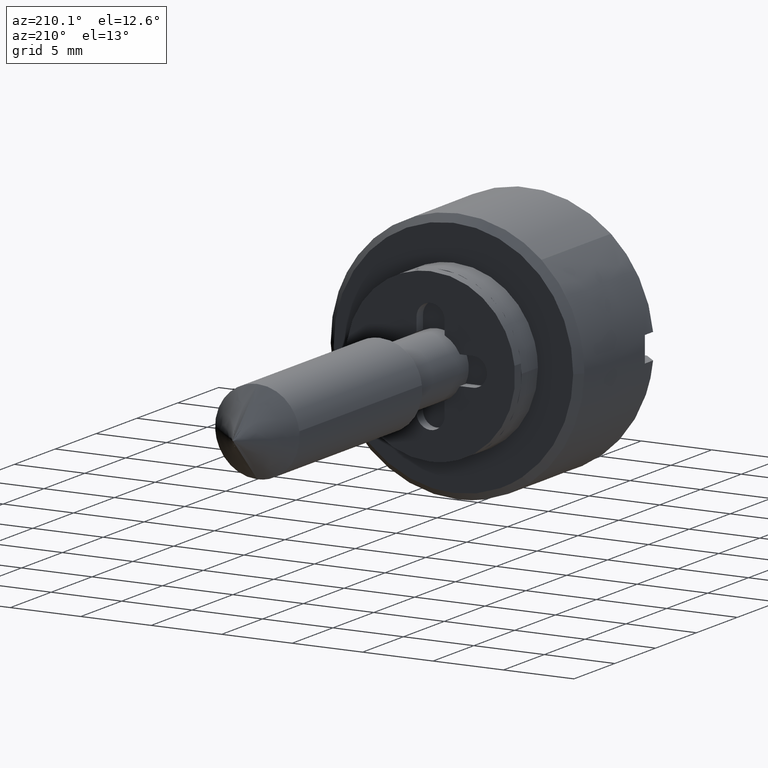
[diagram: clean part render]
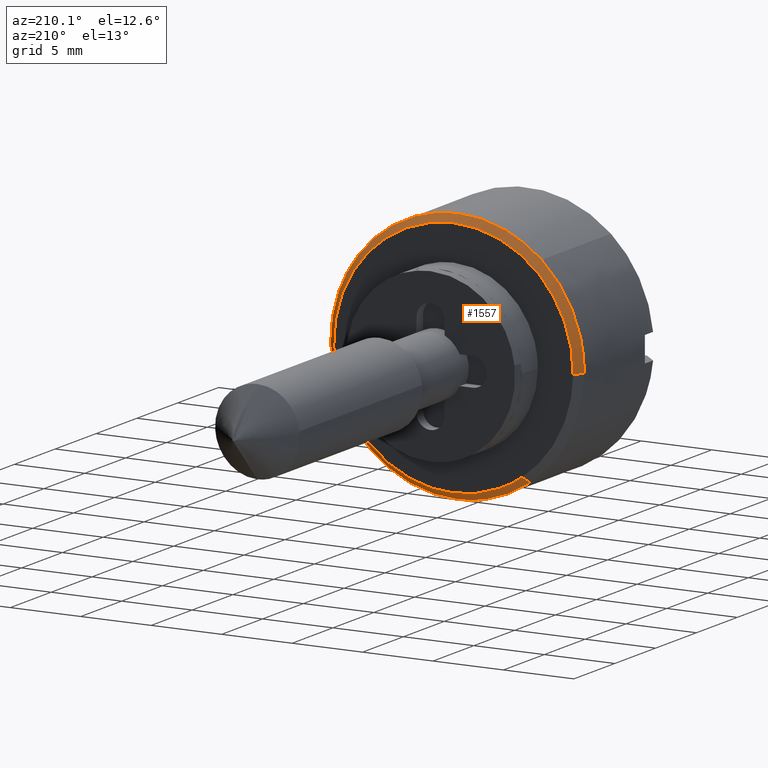
[diagram: same view with one face highlighted and labeled with its STEP entity id]
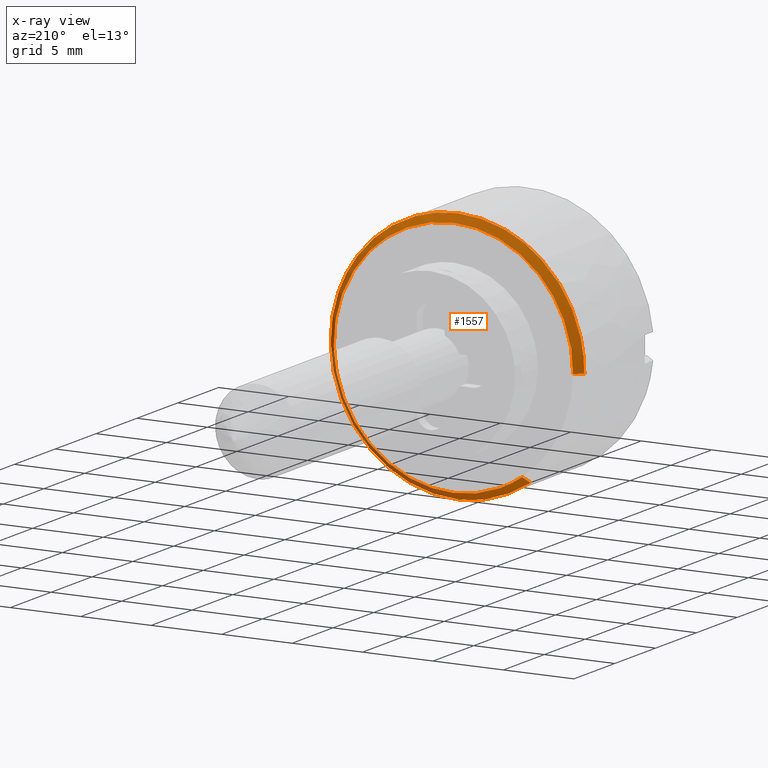
[diagram: x-ray of the same camera — body ghosted, the highlighted face saturated]
A machine part, auxiliary view. The second image highlights one B-rep face of the part: STEP entity #1557.
The next image is the same camera in x-ray: the body ghosted, the highlighted face saturated — about 5% of this face is hidden behind the body in this view.
In plain terms, the highlighted face is a freeform B-spline surface patch.
Its self-contained STEP definition (entity closure, byte-faithful):
#1387=CARTESIAN_POINT('',(-1.987500000000102,4.871694058989055,-6.950126131633188));
#1388=CARTESIAN_POINT('',(-1.987500000000102,2.645031824215975,-8.510906033331208));
#1389=CARTESIAN_POINT('',(-1.987500000000101,-0.074066470042448,-8.487176822007138));
#1390=CARTESIAN_POINT('',(-1.987500000000102,-8.561243292049586,-8.413110351964690));
#1391=CARTESIAN_POINT('',(-1.987500000000101,-8.487176822007138,0.074066470042448));
#1392=CARTESIAN_POINT('',(-1.987500000000102,-8.413110351964690,8.561243292049586));
#1393=CARTESIAN_POINT('',(-1.987500000000101,0.074066470042448,8.487176822007138));
#1394=CARTESIAN_POINT('',(-1.987500000000102,8.561243292049586,8.413110351964690));
#1395=CARTESIAN_POINT('',(-1.987500000000101,8.487176822007138,-0.074066470042448));
#1396=CARTESIAN_POINT('',(-2.512812500000060,5.173215329723990,-7.380286736466609));
#1397=CARTESIAN_POINT('',(-2.512812500000059,2.808739427180158,-9.037667190990643));
#1398=CARTESIAN_POINT('',(-2.512812500000059,-0.078650628221438,-9.012469319716800));
#1399=CARTESIAN_POINT('',(-2.512812500000060,-9.091119947938237,-8.933818691495363));
#1400=CARTESIAN_POINT('',(-2.512812500000059,-9.012469319716800,0.078650628221438));
#1401=CARTESIAN_POINT('',(-2.512812500000060,-8.933818691495363,9.091119947938237));
#1402=CARTESIAN_POINT('',(-2.512812500000059,0.078650628221438,9.012469319716800));
#1403=CARTESIAN_POINT('',(-2.512812500000060,9.091119947938237,8.933818691495363));
#1404=CARTESIAN_POINT('',(-2.512812500000059,9.012469319716800,-0.078650628221438));
#1412=(BOUNDED_SURFACE()B_SPLINE_SURFACE(2,1,((#1387,#1396),(#1388,#1397),(#1389,#1398),(#1390,#1399),(#1391,#1400),(#1392,#1401),(#1393,#1402),(#1394,#1403),(#1395,#1404)),.UNSPECIFIED.,.F.,.F.,.U.)B_SPLINE_SURFACE_WITH_KNOTS((3,2,2,2,3),(2,2),(0.0,5.973166676201216,20.906083366704259,35.839000057207294,50.771916747710343),(0.0,1.0),.UNSPECIFIED.)GEOMETRIC_REPRESENTATION_ITEM()RATIONAL_B_SPLINE_SURFACE(((0.859411254969543,0.859411254969543),(0.882842712474619,0.882842712474619),(1.0,1.0),(0.707106781186548,0.707106781186548),(1.0,1.0),(0.707106781186548,0.707106781186548),(1.0,1.0),(0.707106781186548,0.707106781186548),(1.0,1.0)))REPRESENTATION_ITEM('')SURFACE());
#1413=CARTESIAN_POINT('',(-2.500000000000686,5.165861152401353,-7.369795014389601));
#1414=VERTEX_POINT('',#1413);
#1415=CARTESIAN_POINT('',(-2.500000000000060,0.0,-9.0));
#1416=VERTEX_POINT('',#1415);
#1417=CARTESIAN_POINT('',(-2.500000000000686,5.165861152401353,-7.369795014389601));
#1418=CARTESIAN_POINT('',(-2.500000000000059,2.840154707549706,-9.000000000000002));
#1419=CARTESIAN_POINT('',(-2.500000000000060,0.0,-9.0));
#1427=(BOUNDED_CURVE()B_SPLINE_CURVE(2,(#1417,#1418,#1419),.UNSPECIFIED.,.F.,.U.)B_SPLINE_CURVE_WITH_KNOTS((3,3),(0.901326273796632,1.0),.UNSPECIFIED.)CURVE()GEOMETRIC_REPRESENTATION_ITEM()RATIONAL_B_SPLINE_CURVE((0.860049271925627,0.884396538879913,1.0))REPRESENTATION_ITEM(''));
#1428=EDGE_CURVE('',#1414,#1416,#1427,.T.);
#1429=ORIENTED_EDGE('',*,*,#1428,.F.);
#1430=CARTESIAN_POINT('',(-2.000000000000709,4.878868866157049,-6.960361958034484));
#1431=VERTEX_POINT('',#1430);
#1432=CARTESIAN_POINT('',(-2.000000000000709,4.878868866157049,-6.960361958034484));
#1433=CARTESIAN_POINT('',(-2.500000000000686,5.165861152401353,-7.369795014389601));
#1434=QUASI_UNIFORM_CURVE('',1,(#1432,#1433),.UNSPECIFIED.,.F.,.U.);
#1435=EDGE_CURVE('',#1431,#1414,#1434,.T.);
#1436=ORIENTED_EDGE('',*,*,#1435,.F.);
#1437=CARTESIAN_POINT('',(-2.000000000000100,0.0,-8.500000000000000));
#1438=VERTEX_POINT('',#1437);
#1439=CARTESIAN_POINT('',(-2.000000000000100,0.0,-8.500000000000000));
#1440=CARTESIAN_POINT('',(-2.000000000000101,2.682368334908339,-8.500000000000002));
#1441=CARTESIAN_POINT('',(-2.000000000000709,4.878868866157049,-6.960361958034484));
#1449=(BOUNDED_CURVE()B_SPLINE_CURVE(2,(#1439,#1440,#1441),.UNSPECIFIED.,.F.,.U.)B_SPLINE_CURVE_WITH_KNOTS((3,3),(0.0,0.098673726203377),.UNSPECIFIED.)CURVE()GEOMETRIC_REPRESENTATION_ITEM()RATIONAL_B_SPLINE_CURVE((1.0,0.884396538879903,0.860049271925623))REPRESENTATION_ITEM(''));
#1450=EDGE_CURVE('',#1438,#1431,#1449,.T.);
#1451=ORIENTED_EDGE('',*,*,#1450,.F.);
#1452=CARTESIAN_POINT('',(-2.000000000000100,0.0,8.500000000000000));
#1453=VERTEX_POINT('',#1452);
#1454=CARTESIAN_POINT('',(-2.000000000000100,0.0,8.500000000000000));
#1455=CARTESIAN_POINT('',(-2.000000000000100,-8.500000000000002,8.500000000000002));
#1456=CARTESIAN_POINT('',(-2.000000000000100,-8.500000000000000,0.0));
#1457=CARTESIAN_POINT('',(-2.000000000000100,-8.500000000000002,-8.500000000000002));
#1458=CARTESIAN_POINT('',(-2.000000000000100,0.0,-8.500000000000000));
#1466=(BOUNDED_CURVE()B_SPLINE_CURVE(2,(#1454,#1455,#1456,#1457,#1458),.UNSPECIFIED.,.F.,.U.)B_SPLINE_CURVE_WITH_KNOTS((3,2,3),(0.500000000000000,0.750000000000000,1.0),.UNSPECIFIED.)CURVE()GEOMETRIC_REPRESENTATION_ITEM()RATIONAL_B_SPLINE_CURVE((1.0,0.707106781186548,1.0,0.707106781186548,1.0))REPRESENTATION_ITEM(''));
#1467=EDGE_CURVE('',#1453,#1438,#1466,.T.);
#1468=ORIENTED_EDGE('',*,*,#1467,.F.);
#1469=CARTESIAN_POINT('',(-2.000000000003222,8.499676346048370,-0.074175551759162));
#1470=VERTEX_POINT('',#1469);
#1471=CARTESIAN_POINT('',(-2.000000000003223,8.499676346048370,-0.074175551759162));
#1472=CARTESIAN_POINT('',(-2.000000000000100,8.500000000000000,-0.037088481998920));
#1473=CARTESIAN_POINT('',(-2.000000000000100,8.500000000000000,0.0));
#1474=CARTESIAN_POINT('',(-2.000000000000100,8.500000000000002,8.500000000000002));
#1475=CARTESIAN_POINT('',(-2.000000000000100,0.0,8.500000000000000));
#1483=(BOUNDED_CURVE()B_SPLINE_CURVE(2,(#1471,#1472,#1473,#1474,#1475),.UNSPECIFIED.,.F.,.U.)B_SPLINE_CURVE_WITH_KNOTS((3,2,3),(0.248460105664061,0.250000000000000,0.500000000000000),.UNSPECIFIED.)CURVE()GEOMETRIC_REPRESENTATION_ITEM()RATIONAL_B_SPLINE_CURVE((0.996414028098204,0.998195901565257,1.0,0.707106781186548,1.0))REPRESENTATION_ITEM(''));
#1484=EDGE_CURVE('',#1470,#1453,#1483,.T.);
#1485=ORIENTED_EDGE('',*,*,#1484,.F.);
#1486=CARTESIAN_POINT('',(-2.500000000001362,8.999657307578758,-0.078538819494966));
#1487=VERTEX_POINT('',#1486);
#1488=CARTESIAN_POINT('',(-2.000000000003222,8.499676346048370,-0.074175551759162));
#1489=CARTESIAN_POINT('',(-2.500000000001362,8.999657307578758,-0.078538819494966));
#1490=QUASI_UNIFORM_CURVE('',1,(#1488,#1489),.UNSPECIFIED.,.F.,.U.);
#1491=EDGE_CURVE('',#1470,#1487,#1490,.T.);
#1492=ORIENTED_EDGE('',*,*,#1491,.T.);
#1493=CARTESIAN_POINT('',(-2.500000000000060,5.963579655238609,6.740602176039100));
#1494=VERTEX_POINT('',#1493);
#1495=CARTESIAN_POINT('',(-2.500000000000061,5.963579655238609,6.740602176039100));
#1496=CARTESIAN_POINT('',(-2.500000000000060,9.000000000000002,4.054205008566499));
#1497=CARTESIAN_POINT('',(-2.500000000000060,9.0,0.0));
#1498=CARTESIAN_POINT('',(-2.500000000000059,9.0,-0.039270157395879));
#1499=CARTESIAN_POINT('',(-2.500000000001361,8.999657307578758,-0.078538819494966));
#1507=(BOUNDED_CURVE()B_SPLINE_CURVE(2,(#1495,#1496,#1497,#1498,#1499),.UNSPECIFIED.,.F.,.U.)B_SPLINE_CURVE_WITH_KNOTS((3,2,3),(0.615779870612036,0.750000000000000,0.751539894335362),.UNSPECIFIED.)CURVE()GEOMETRIC_REPRESENTATION_ITEM()RATIONAL_B_SPLINE_CURVE((0.854350161240478,0.842751337096005,1.0,0.998195901565934,0.996414028099539))REPRESENTATION_ITEM(''));
#1508=EDGE_CURVE('',#1494,#1487,#1507,.T.);
#1509=ORIENTED_EDGE('',*,*,#1508,.F.);
#1510=CARTESIAN_POINT('',(-2.500000000000060,0.0,9.0));
#1511=VERTEX_POINT('',#1510);
#1512=CARTESIAN_POINT('',(-2.500000000000060,0.0,9.0));
#1513=CARTESIAN_POINT('',(-2.500000000000060,3.409794383778369,9.0));
#1514=CARTESIAN_POINT('',(-2.500000000000061,5.963579655238609,6.740602176039100));
#1522=(BOUNDED_CURVE()B_SPLINE_CURVE(2,(#1512,#1513,#1514),.UNSPECIFIED.,.F.,.U.)B_SPLINE_CURVE_WITH_KNOTS((3,3),(0.500000000000000,0.615779870612036),.UNSPECIFIED.)CURVE()GEOMETRIC_REPRESENTATION_ITEM()RATIONAL_B_SPLINE_CURVE((1.0,0.864355444090543,0.854350161240478))REPRESENTATION_ITEM(''));
#1523=EDGE_CURVE('',#1511,#1494,#1522,.T.);
#1524=ORIENTED_EDGE('',*,*,#1523,.F.);
#1525=CARTESIAN_POINT('',(-2.500000000000060,-7.070639981337940,5.568307665198088));
#1526=VERTEX_POINT('',#1525);
#1527=CARTESIAN_POINT('',(-2.500000000000060,-7.070639981337941,5.568307665198087));
#1528=CARTESIAN_POINT('',(-2.500000000000060,-4.368095546475855,9.0));
#1529=CARTESIAN_POINT('',(-2.500000000000060,0.0,9.0));
#1537=(BOUNDED_CURVE()B_SPLINE_CURVE(2,(#1527,#1528,#1529),.UNSPECIFIED.,.F.,.U.)B_SPLINE_CURVE_WITH_KNOTS((3,3),(0.357127519602431,0.500000000000000),.UNSPECIFIED.)CURVE()GEOMETRIC_REPRESENTATION_ITEM()RATIONAL_B_SPLINE_CURVE((0.856547233125744,0.832614477345976,1.0))REPRESENTATION_ITEM(''));
#1538=EDGE_CURVE('',#1526,#1511,#1537,.T.);
#1539=ORIENTED_EDGE('',*,*,#1538,.F.);
#1540=CARTESIAN_POINT('',(-2.500000000000060,0.0,-9.0));
#1541=CARTESIAN_POINT('',(-2.500000000000060,-9.0,-9.0));
#1542=CARTESIAN_POINT('',(-2.500000000000060,-9.0,0.0));
#1543=CARTESIAN_POINT('',(-2.500000000000060,-9.000000000000004,3.118405305885699));
#1544=CARTESIAN_POINT('',(-2.500000000000060,-7.070639981337941,5.568307665198087));
#1552=(BOUNDED_CURVE()B_SPLINE_CURVE(2,(#1540,#1541,#1542,#1543,#1544),.UNSPECIFIED.,.F.,.U.)B_SPLINE_CURVE_WITH_KNOTS((3,2,3),(0.0,0.250000000000000,0.357127519602431),.UNSPECIFIED.)CURVE()GEOMETRIC_REPRESENTATION_ITEM()RATIONAL_B_SPLINE_CURVE((1.0,0.707106781186547,1.0,0.874492303840571,0.856547233125744))REPRESENTATION_ITEM(''));
#1553=EDGE_CURVE('',#1416,#1526,#1552,.T.);
#1554=ORIENTED_EDGE('',*,*,#1553,.F.);
#1555=EDGE_LOOP('',(#1429,#1436,#1451,#1468,#1485,#1492,#1509,#1524,#1539,#1554));
#1556=FACE_OUTER_BOUND('',#1555,.T.);
#1557=ADVANCED_FACE('',(#1556),#1412,.T.);